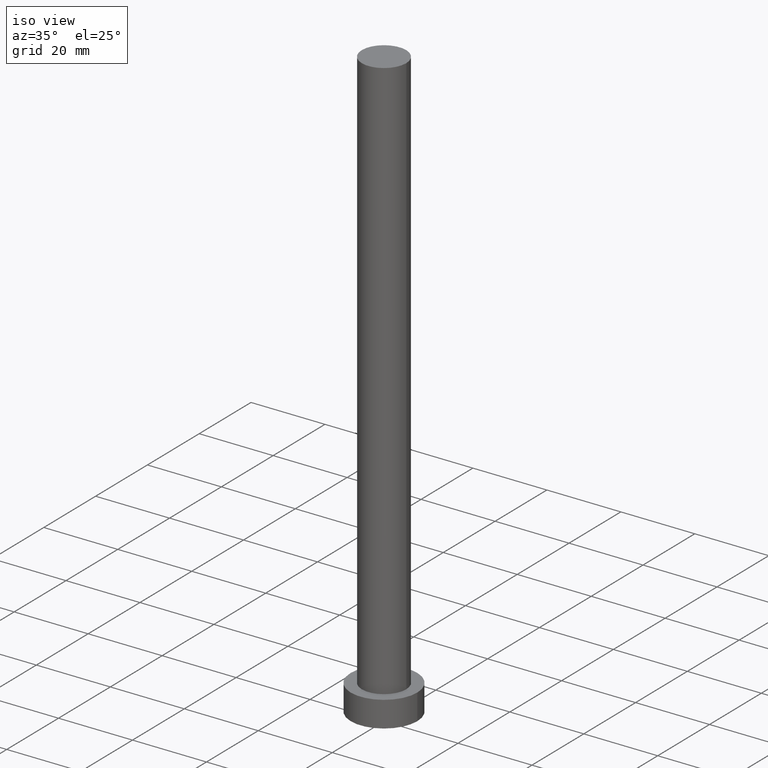
[diagram: clean part render]
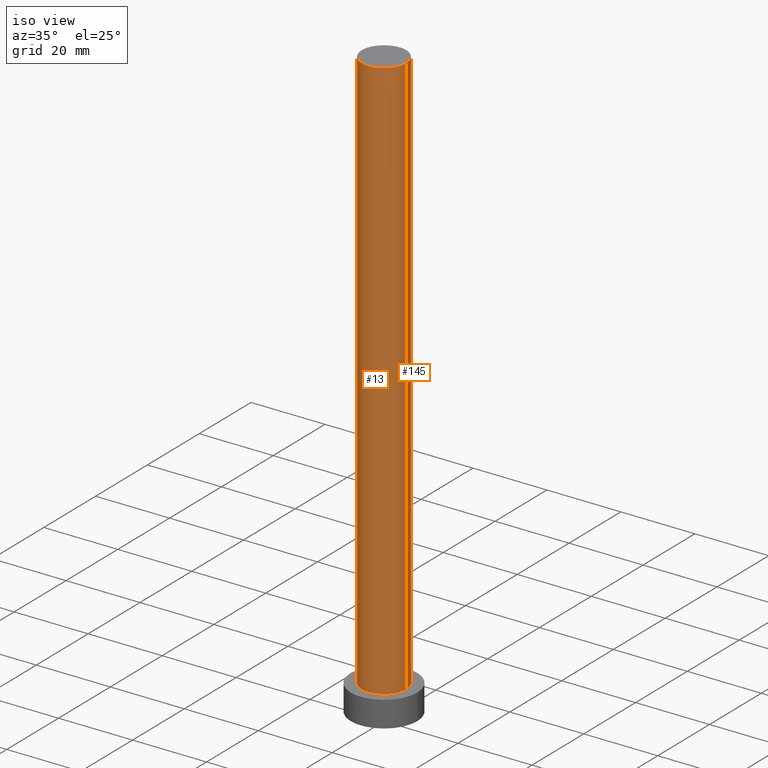
[diagram: same view with one multi-face feature highlighted, each face labeled with its STEP entity id]
A machine part, iso view. The highlighted faces form ONE feature: a constant-radius fillet chain: 2 tangent blend faces with common blend radius 6 mm. The faces share edges in the B-rep.
Their STEP definitions:
[1] entity #13 (Cylinder):
#2 = CARTESIAN_POINT ( 'NONE',  ( -6.000000000000000888, 0.000000000000000000, 7.000000000000000000 ) ) ;
#5 = CARTESIAN_POINT ( 'NONE',  ( 6.000000000000000888, 7.347880794884120722E-16, 160.0000000000000000 ) ) ;
#8 = ORIENTED_EDGE ( 'NONE', *, *, #247, .F. ) ;
#13 = ADVANCED_FACE ( 'NONE', ( #232 ), #139, .T. ) ;
#21 = DIRECTION ( 'NONE',  ( -1.000000000000000000, 0.000000000000000000, 0.000000000000000000 ) ) ;
#39 = CIRCLE ( 'NONE', #165, 6.000000000000000888 ) ;
#41 = CARTESIAN_POINT ( 'NONE',  ( 0.000000000000000000, 0.000000000000000000, 160.0000000000000000 ) ) ;
#44 = DIRECTION ( 'NONE',  ( 0.000000000000000000, 0.000000000000000000, 1.000000000000000000 ) ) ;
#46 = AXIS2_PLACEMENT_3D ( 'NONE', #141, #44, #229 ) ;
#48 = CARTESIAN_POINT ( 'NONE',  ( 6.000000000000000888, 7.347880794884120722E-16, 160.0000000000000000 ) ) ;
#55 = VERTEX_POINT ( 'NONE', #2 ) ;
#57 = EDGE_CURVE ( 'NONE', #127, #55, #60, .T. ) ;
#60 = LINE ( 'NONE', #231, #159 ) ;
#74 = EDGE_CURVE ( 'NONE', #127, #170, #149, .T. ) ;
#102 = CARTESIAN_POINT ( 'NONE',  ( -6.000000000000000888, 0.000000000000000000, 160.0000000000000000 ) ) ;
#103 = DIRECTION ( 'NONE',  ( -0.000000000000000000, -0.000000000000000000, -1.000000000000000000 ) ) ;
#107 = DIRECTION ( 'NONE',  ( 0.000000000000000000, 0.000000000000000000, 1.000000000000000000 ) ) ;
#122 = DIRECTION ( 'NONE',  ( -0.000000000000000000, -0.000000000000000000, -1.000000000000000000 ) ) ;
#125 = CARTESIAN_POINT ( 'NONE',  ( 6.000000000000000888, 7.347880794884120722E-16, 7.000000000000000000 ) ) ;
#127 = VERTEX_POINT ( 'NONE', #102 ) ;
#137 = DIRECTION ( 'NONE',  ( -0.000000000000000000, -0.000000000000000000, -1.000000000000000000 ) ) ;
#139 = CYLINDRICAL_SURFACE ( 'NONE', #237, 6.000000000000000888 ) ;
#141 = CARTESIAN_POINT ( 'NONE',  ( 0.000000000000000000, 0.000000000000000000, 160.0000000000000000 ) ) ;
#146 = CARTESIAN_POINT ( 'NONE',  ( 0.000000000000000000, 0.000000000000000000, 7.000000000000000000 ) ) ;
#149 = CIRCLE ( 'NONE', #46, 6.000000000000000888 ) ;
#159 = VECTOR ( 'NONE', #137, 1000.000000000000000 ) ;
#165 = AXIS2_PLACEMENT_3D ( 'NONE', #146, #107, #239 ) ;
#170 = VERTEX_POINT ( 'NONE', #48 ) ;
#171 = VERTEX_POINT ( 'NONE', #125 ) ;
#187 = EDGE_LOOP ( 'NONE', ( #8, #212, #208, #209 ) ) ;
#203 = VECTOR ( 'NONE', #122, 1000.000000000000000 ) ;
#208 = ORIENTED_EDGE ( 'NONE', *, *, #57, .T. ) ;
#209 = ORIENTED_EDGE ( 'NONE', *, *, #214, .T. ) ;
#212 = ORIENTED_EDGE ( 'NONE', *, *, #74, .F. ) ;
#214 = EDGE_CURVE ( 'NONE', #55, #171, #39, .T. ) ;
#220 = LINE ( 'NONE', #5, #203 ) ;
#229 = DIRECTION ( 'NONE',  ( 1.000000000000000000, 0.000000000000000000, 0.000000000000000000 ) ) ;
#231 = CARTESIAN_POINT ( 'NONE',  ( -6.000000000000000888, 0.000000000000000000, 160.0000000000000000 ) ) ;
#232 = FACE_OUTER_BOUND ( 'NONE', #187, .T. ) ;
#237 = AXIS2_PLACEMENT_3D ( 'NONE', #41, #103, #21 ) ;
#239 = DIRECTION ( 'NONE',  ( 1.000000000000000000, 0.000000000000000000, 0.000000000000000000 ) ) ;
#247 = EDGE_CURVE ( 'NONE', #170, #171, #220, .T. ) ;
[2] entity #145 (Cylinder):
#2 = CARTESIAN_POINT ( 'NONE',  ( -6.000000000000000888, 0.000000000000000000, 7.000000000000000000 ) ) ;
#5 = CARTESIAN_POINT ( 'NONE',  ( 6.000000000000000888, 7.347880794884120722E-16, 160.0000000000000000 ) ) ;
#26 = EDGE_LOOP ( 'NONE', ( #135, #210, #227, #250 ) ) ;
#48 = CARTESIAN_POINT ( 'NONE',  ( 6.000000000000000888, 7.347880794884120722E-16, 160.0000000000000000 ) ) ;
#51 = EDGE_CURVE ( 'NONE', #171, #55, #123, .T. ) ;
#55 = VERTEX_POINT ( 'NONE', #2 ) ;
#57 = EDGE_CURVE ( 'NONE', #127, #55, #60, .T. ) ;
#60 = LINE ( 'NONE', #231, #159 ) ;
#61 = FACE_OUTER_BOUND ( 'NONE', #26, .T. ) ;
#65 = CIRCLE ( 'NONE', #86, 6.000000000000000888 ) ;
#81 = DIRECTION ( 'NONE',  ( 1.000000000000000000, 0.000000000000000000, 0.000000000000000000 ) ) ;
#82 = DIRECTION ( 'NONE',  ( -1.000000000000000000, 0.000000000000000000, 0.000000000000000000 ) ) ;
#86 = AXIS2_PLACEMENT_3D ( 'NONE', #99, #118, #195 ) ;
#95 = EDGE_CURVE ( 'NONE', #170, #127, #65, .T. ) ;
#99 = CARTESIAN_POINT ( 'NONE',  ( 0.000000000000000000, 0.000000000000000000, 160.0000000000000000 ) ) ;
#102 = CARTESIAN_POINT ( 'NONE',  ( -6.000000000000000888, 0.000000000000000000, 160.0000000000000000 ) ) ;
#111 = AXIS2_PLACEMENT_3D ( 'NONE', #175, #120, #81 ) ;
#118 = DIRECTION ( 'NONE',  ( 0.000000000000000000, 0.000000000000000000, 1.000000000000000000 ) ) ;
#120 = DIRECTION ( 'NONE',  ( 0.000000000000000000, 0.000000000000000000, 1.000000000000000000 ) ) ;
#122 = DIRECTION ( 'NONE',  ( -0.000000000000000000, -0.000000000000000000, -1.000000000000000000 ) ) ;
#123 = CIRCLE ( 'NONE', #111, 6.000000000000000888 ) ;
#125 = CARTESIAN_POINT ( 'NONE',  ( 6.000000000000000888, 7.347880794884120722E-16, 7.000000000000000000 ) ) ;
#126 = CARTESIAN_POINT ( 'NONE',  ( 0.000000000000000000, 0.000000000000000000, 160.0000000000000000 ) ) ;
#127 = VERTEX_POINT ( 'NONE', #102 ) ;
#128 = AXIS2_PLACEMENT_3D ( 'NONE', #126, #180, #82 ) ;
#135 = ORIENTED_EDGE ( 'NONE', *, *, #95, .F. ) ;
#137 = DIRECTION ( 'NONE',  ( -0.000000000000000000, -0.000000000000000000, -1.000000000000000000 ) ) ;
#145 = ADVANCED_FACE ( 'NONE', ( #61 ), #151, .T. ) ;
#151 = CYLINDRICAL_SURFACE ( 'NONE', #128, 6.000000000000000888 ) ;
#159 = VECTOR ( 'NONE', #137, 1000.000000000000000 ) ;
#170 = VERTEX_POINT ( 'NONE', #48 ) ;
#171 = VERTEX_POINT ( 'NONE', #125 ) ;
#175 = CARTESIAN_POINT ( 'NONE',  ( 0.000000000000000000, 0.000000000000000000, 7.000000000000000000 ) ) ;
#180 = DIRECTION ( 'NONE',  ( -0.000000000000000000, -0.000000000000000000, -1.000000000000000000 ) ) ;
#195 = DIRECTION ( 'NONE',  ( 1.000000000000000000, 0.000000000000000000, 0.000000000000000000 ) ) ;
#203 = VECTOR ( 'NONE', #122, 1000.000000000000000 ) ;
#210 = ORIENTED_EDGE ( 'NONE', *, *, #247, .T. ) ;
#220 = LINE ( 'NONE', #5, #203 ) ;
#227 = ORIENTED_EDGE ( 'NONE', *, *, #51, .T. ) ;
#231 = CARTESIAN_POINT ( 'NONE',  ( -6.000000000000000888, 0.000000000000000000, 160.0000000000000000 ) ) ;
#247 = EDGE_CURVE ( 'NONE', #170, #171, #220, .T. ) ;
#250 = ORIENTED_EDGE ( 'NONE', *, *, #57, .F. ) ;